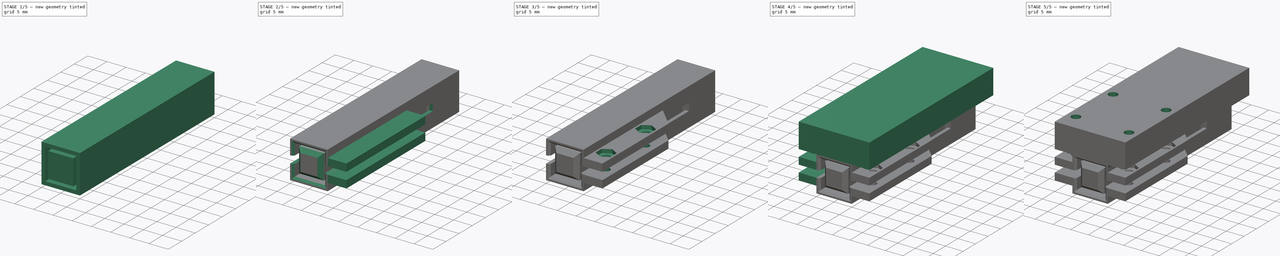
[diagram: build sequence overview — one tinted view per stage of 5, left to right]
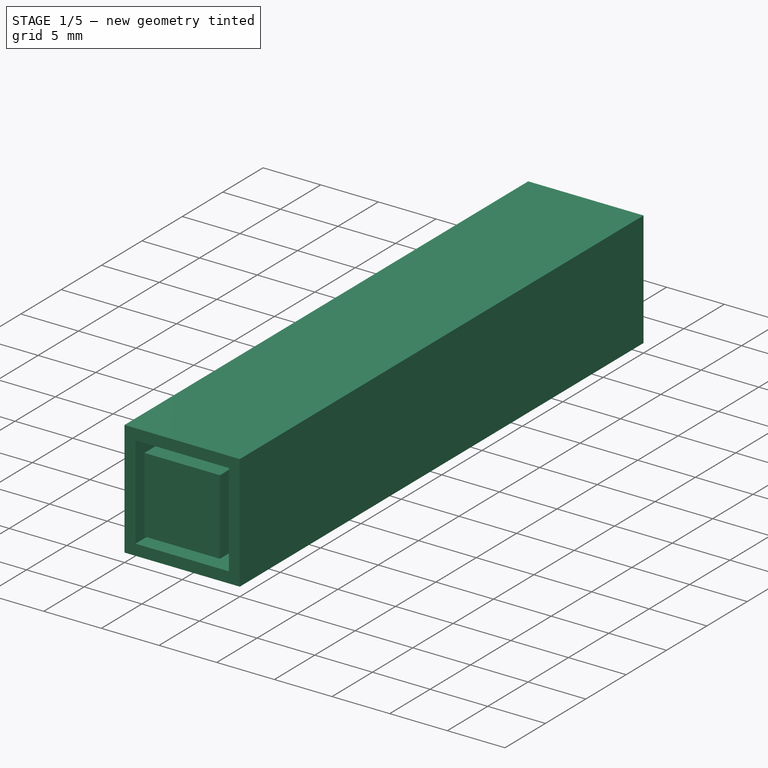
[diagram: stage 1 of 5 — iso view after this stage's code; geometry added in this stage tinted green]
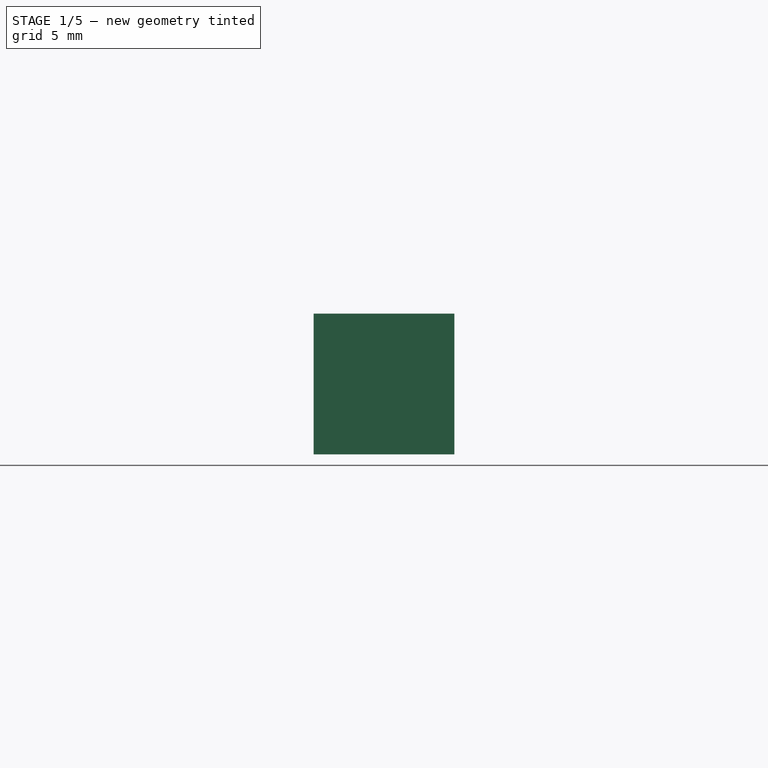
[diagram: stage 1 of 5 — front view after this stage's code; geometry added in this stage tinted green]
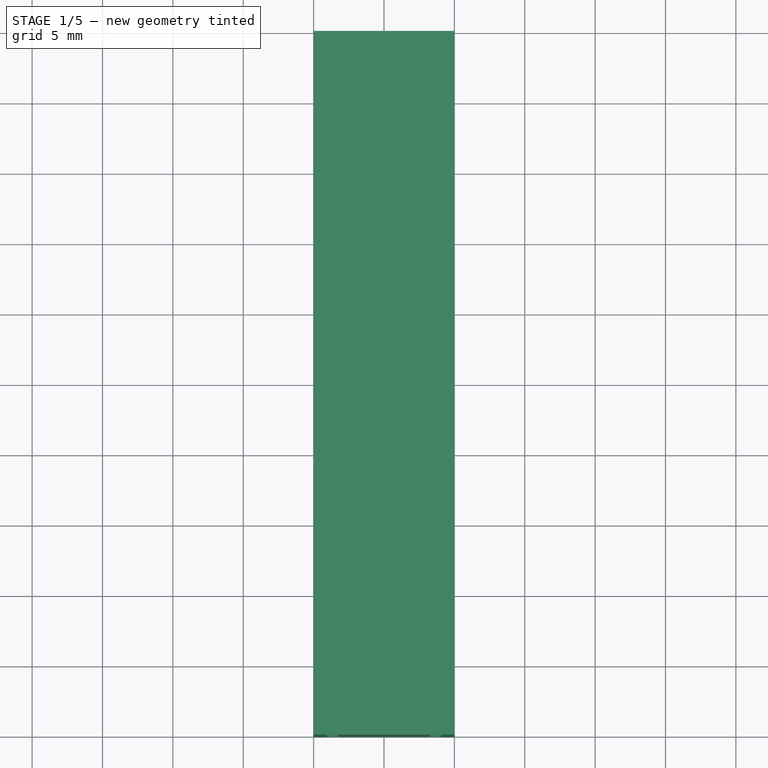
[diagram: stage 1 of 5 — top view after this stage's code; geometry added in this stage tinted green]
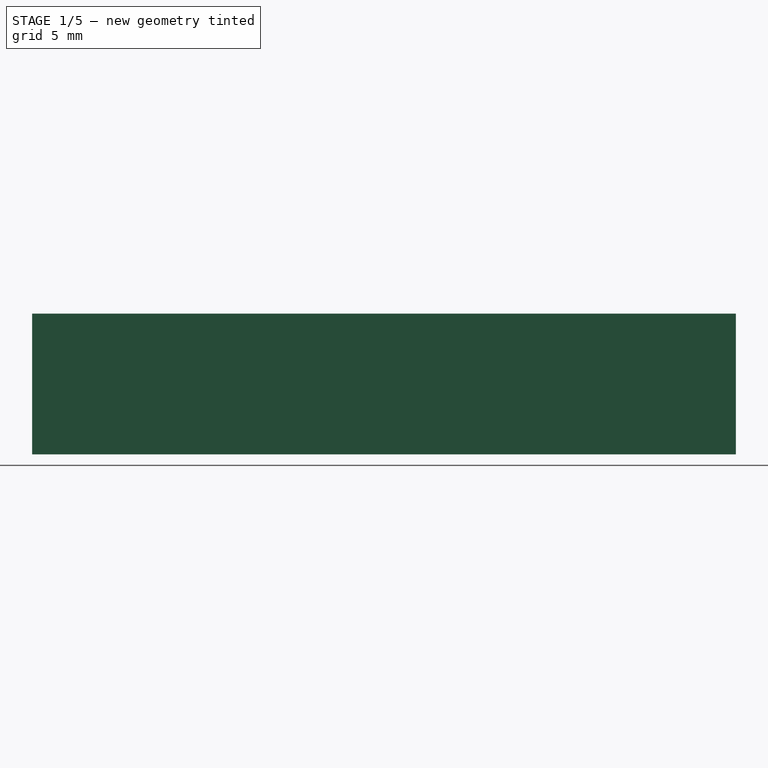
[diagram: stage 1 of 5 — right view after this stage's code; geometry added in this stage tinted green]
FCSTD DOCUMENT  (FreeCAD 0.21R33771 (Git))
Label: Stangenaufnahme
License: All rights reserved
LicenseURL: https://en.wikipedia.org/wiki/All_rights_reserved
objects: Sketcher::SketchObject×10, PartDesign::Pad×5, PartDesign::Chamfer×5, PartDesign::Pocket×4, PartDesign::Mirrored×2, PartDesign::Fillet×1, PartDesign::Body×1
note: 43 computed .brp shape members not serialized (recipe doc carries the construction recipe); baked Part::Feature solids carry a one-line shape summary decoded from their .brp

FEATURE [Sketcher::SketchObject] Sketch
  FullyConstrained = true
  MapMode = 5
  Placement = pos=(0,0,0) rot=(1,0,0;1.5708rad)
  Support = -> [XZ_Plane]
  sketch-geometry (4):
    g0: LineSegment StartX=-3.275 StartY=3.275 StartZ=0 EndX=3.275 EndY=3.275 EndZ=0
    g1: LineSegment StartX=3.275 StartY=3.275 StartZ=0 EndX=3.275 EndY=-3.275 EndZ=0
    g2: LineSegment StartX=3.275 StartY=-3.275 StartZ=0 EndX=-3.275 EndY=-3.275 EndZ=0
    g3: LineSegment StartX=-3.275 StartY=-3.275 StartZ=0 EndX=-3.275 EndY=3.275 EndZ=0
  constraints (10):
    c: Coincident(g0,g1)
    c: Coincident(g1,g2)
    c: Coincident(g2,g3)
    c: Coincident(g3,g0)
    c: Horizontal(g2)
    c: Vertical(g3)
    c: Symmetric(g0,g0,g-2)
    c: Symmetric(g1,g0,g-1)
    c: Distance(g0) = 6.55
    c: Distance(g1) = 6.55
FEATURE [PartDesign::Pad] Pad
  Direction = (0,-1,-2e-16)
  Length = 40
  Length2 = 10
  Placement = pos=(0,0,0) rot=(1,0,0;1.5708rad)
  Profile = -> Sketch
  ReferenceAxis = -> Sketch [N_Axis]
  Type = 0
FEATURE [Sketcher::SketchObject] Sketch001
  FullyConstrained = true
  MapMode = 5
  Placement = pos=(0,0,0) rot=(-1,0,0;1.5708rad)
  Support = -> [Pad]
  sketch-geometry (4):
    g0: LineSegment StartX=-5 StartY=5 StartZ=0 EndX=5 EndY=5 EndZ=0
    g1: LineSegment StartX=5 StartY=5 StartZ=0 EndX=5 EndY=-5 EndZ=0
    g2: LineSegment StartX=5 StartY=-5 StartZ=0 EndX=-5 EndY=-5 EndZ=0
    g3: LineSegment StartX=-5 StartY=-5 StartZ=0 EndX=-5 EndY=5 EndZ=0
  constraints (10):
    c: Coincident(g0,g1)
    c: Coincident(g1,g2)
    c: Coincident(g2,g3)
    c: Coincident(g3,g0)
    c: Horizontal(g2)
    c: Vertical(g3)
    c: Symmetric(g0,g0,g-2)
    c: Symmetric(g1,g0,g-1)
    c: Distance(g0) = 10
    c: Distance(g1) = 10
FEATURE [PartDesign::Pad] Pad001
  BaseFeature = -> Pad
  Direction = (0,1,2e-16)
  Length = 10
  Length2 = 10
  Placement = pos=(0,0,0) rot=(1,0,0;1.5708rad)
  Profile = -> Sketch001
  ReferenceAxis = -> Sketch001 [N_Axis]
  Type = 0
FEATURE [Sketcher::SketchObject] Sketch002
  FullyConstrained = true
  MapMode = 5
  Placement = pos=(0,0,0) rot=(1,0,0;1.5708rad)
  Support = -> [Pad001]
  sketch-geometry (8):
    g0: LineSegment StartX=-4.05 StartY=4.05 StartZ=0 EndX=4.05 EndY=4.05 EndZ=0
    g1: LineSegment StartX=4.05 StartY=4.05 StartZ=0 EndX=4.05 EndY=-4.05 EndZ=0
    g2: LineSegment StartX=4.05 StartY=-4.05 StartZ=0 EndX=-4.05 EndY=-4.05 EndZ=0
    g3: LineSegment StartX=-4.05 StartY=-4.05 StartZ=0 EndX=-4.05 EndY=4.05 EndZ=0
    g4: LineSegment StartX=-5 StartY=5 StartZ=0 EndX=5 EndY=5 EndZ=0
    g5: LineSegment StartX=5 StartY=5 StartZ=0 EndX=5 EndY=-5 EndZ=0
    g6: LineSegment StartX=5 StartY=-5 StartZ=0 EndX=-5 EndY=-5 EndZ=0
    g7: LineSegment StartX=-5 StartY=-5 StartZ=0 EndX=-5 EndY=5 EndZ=0
  constraints (20):
    c: Coincident(g0,g1)
    c: Coincident(g1,g2)
    c: Coincident(g2,g3)
    c: Coincident(g3,g0)
    c: Horizontal(g2)
    c: Vertical(g3)
    c: Coincident(g4,g5)
    c: Coincident(g5,g6)
    c: Coincident(g6,g7)
    c: Coincident(g7,g4)
    c: Horizontal(g6)
    c: Vertical(g7)
    c: Symmetric(g4,g4,g-2)
    c: Symmetric(g5,g4,g-1)
    c: Symmetric(g0,g1,g-1)
    c: Symmetric(g0,g0,g-2)
    c: Distance(g4) = 10
    c: Distance(g5) = 10
    c: Distance(g1) = 8.1
    c: Distance(g0) = 8.1
FEATURE [PartDesign::Pad] Pad002
  BaseFeature = -> Pad001
  Direction = (0,-1,-2e-16)
  Length = 40
  Length2 = 10
  Placement = pos=(0,0,0) rot=(1,0,0;1.5708rad)
  Profile = -> Sketch002
  ReferenceAxis = -> Sketch002 [N_Axis]
  Type = 0
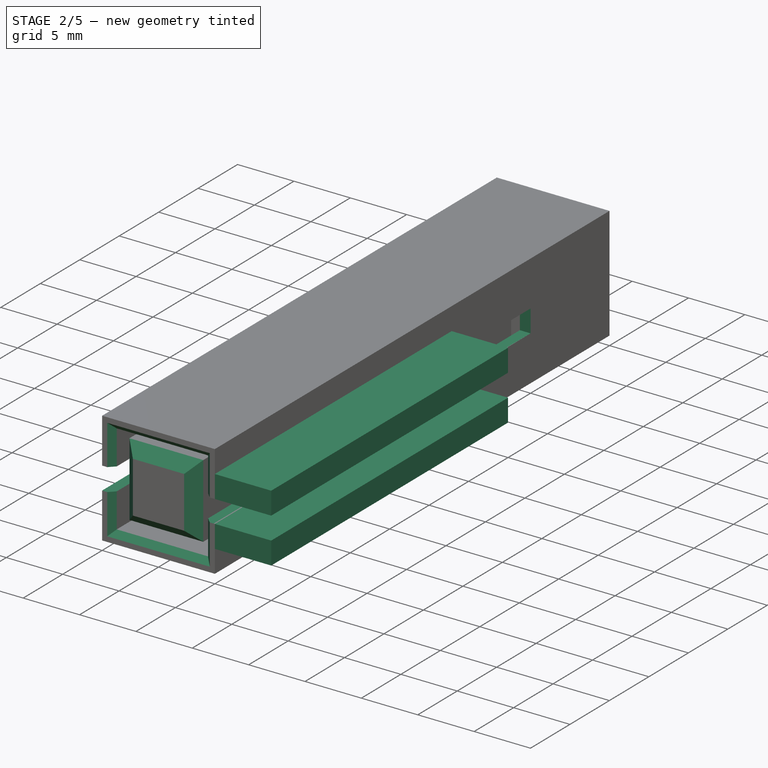
[diagram: stage 2 of 5 — iso view after this stage's code; geometry added in this stage tinted green]
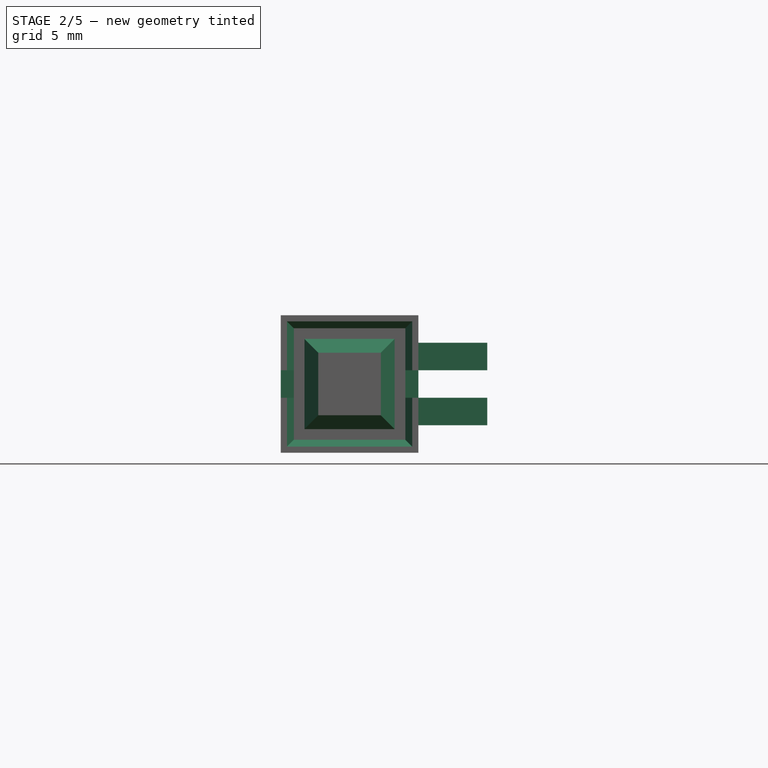
[diagram: stage 2 of 5 — front view after this stage's code; geometry added in this stage tinted green]
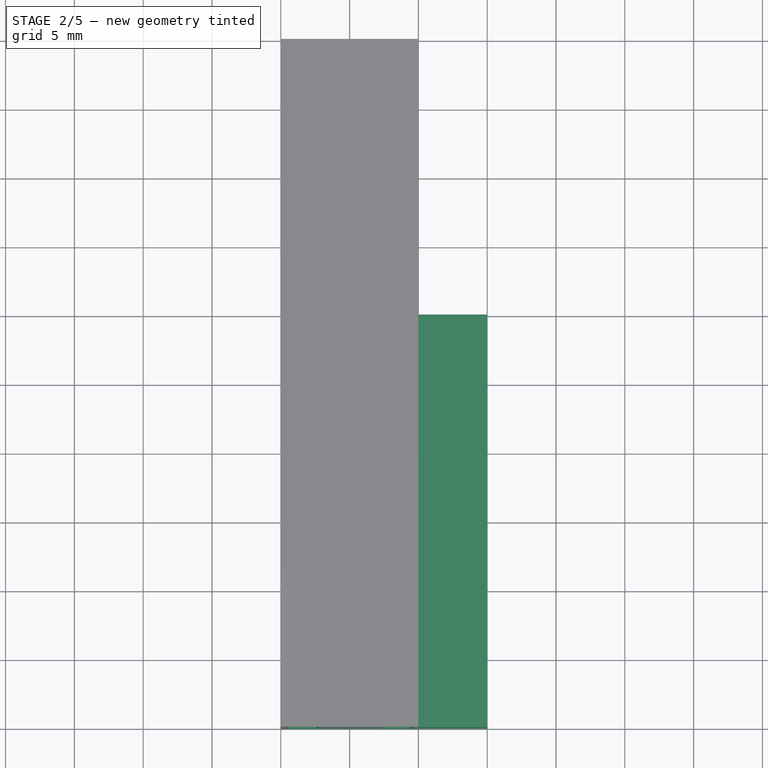
[diagram: stage 2 of 5 — top view after this stage's code; geometry added in this stage tinted green]
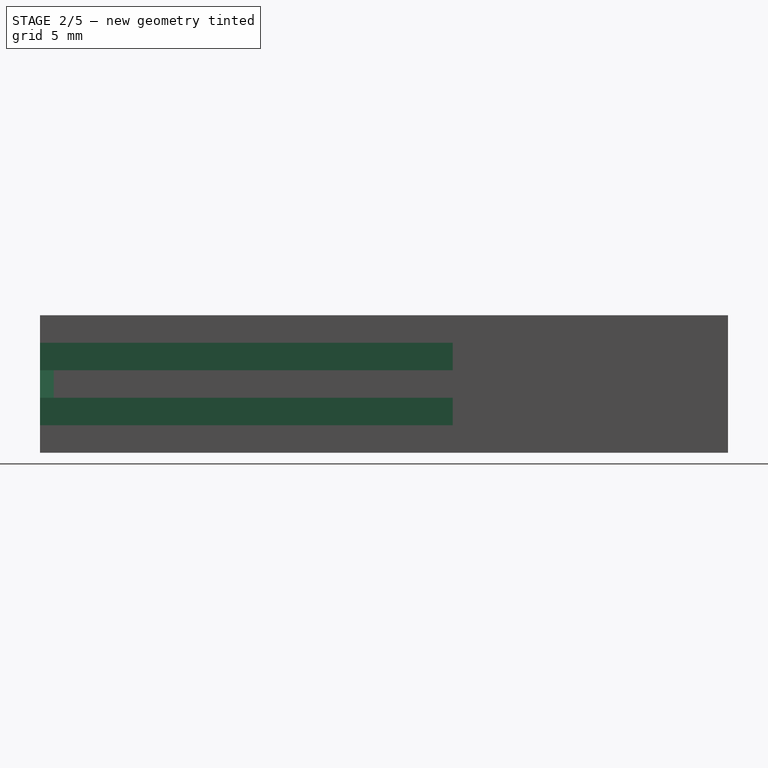
[diagram: stage 2 of 5 — right view after this stage's code; geometry added in this stage tinted green]
FEATURE [PartDesign::Chamfer] Chamfer
  Angle = 45
  Base = -> Pad002 [Edge41,Edge44,Edge43,Edge39]
  BaseFeature = -> Pad002
  ChamferType = 0
  FlipDirection = false
  Placement = pos=(0,0,0) rot=(1,0,0;1.5708rad)
  Size = 1
  Size2 = 1
  SupportTransform = false
  UseAllEdges = false
FEATURE [PartDesign::Chamfer] Chamfer001
  Angle = 45
  Base = -> Chamfer [Edge29,Edge31,Edge32,Edge27]
  BaseFeature = -> Chamfer
  ChamferType = 0
  FlipDirection = false
  Placement = pos=(0,0,0) rot=(1,0,0;1.5708rad)
  Size = 0.5
  Size2 = 1
  SupportTransform = false
  UseAllEdges = false
FEATURE [Sketcher::SketchObject] Sketch003
  FullyConstrained = true
  MapMode = 5
  Placement = pos=(0,-40,1e-16) rot=(1,0,0;1.5708rad)
  Support = -> [Chamfer001]
  sketch-geometry (8):
    g0: LineSegment StartX=-5.5 StartY=1 StartZ=0 EndX=-3.5 EndY=1 EndZ=0
    g1: LineSegment StartX=-3.5 StartY=1 StartZ=0 EndX=-3.5 EndY=-1 EndZ=0
    g2: LineSegment StartX=-3.5 StartY=-1 StartZ=0 EndX=-5.5 EndY=-1 EndZ=0
    g3: LineSegment StartX=-5.5 StartY=-1 StartZ=0 EndX=-5.5 EndY=1 EndZ=0
    g4: LineSegment StartX=3.5 StartY=1 StartZ=0 EndX=5.5 EndY=1 EndZ=0
    g5: LineSegment StartX=5.5 StartY=1 StartZ=0 EndX=5.5 EndY=-1 EndZ=0
    g6: LineSegment StartX=5.5 StartY=-1 StartZ=0 EndX=3.5 EndY=-1 EndZ=0
    g7: LineSegment StartX=3.5 StartY=-1 StartZ=0 EndX=3.5 EndY=1 EndZ=0
  constraints (22):
    c: Coincident(g0,g1)
    c: Coincident(g1,g2)
    c: Coincident(g2,g3)
    c: Coincident(g3,g0)
    c: Horizontal(g0)
    c: Horizontal(g2)
    c: Vertical(g3)
    c: Coincident(g4,g5)
    c: Coincident(g5,g6)
    c: Coincident(g6,g7)
    c: Coincident(g7,g4)
    c: Horizontal(g4)
    c: Horizontal(g6)
    c: Symmetric(g4,g5,g-1)
    c: Vertical(g7)
    c: Symmetric(g0,g1,g-1)
    c: Distance(g5) = 2
    c: Distance(g3) = 2
    c: DistanceX(g0,g-1) = 3.5
    c: DistanceX(g0,g0) = 2
    c: DistanceX(g-1,g4) = 3.5
    c: DistanceX(g4,g4) = 2
FEATURE [PartDesign::Pocket] Pocket
  BaseFeature = -> Chamfer001
  Direction = (0,1,-2e-16)
  Length = 40
  Length2 = 5
  Placement = pos=(0,0,0) rot=(1,0,0;1.5708rad)
  Profile = -> Sketch003
  ReferenceAxis = -> Sketch003 [N_Axis]
  Type = 0
FEATURE [Sketcher::SketchObject] Sketch004
  FullyConstrained = true
  MapMode = 5
  Placement = pos=(0,-40,4.5e-15) rot=(1,0,0;1.5708rad)
  Support = -> [Pocket]
  sketch-geometry (8):
    g0: LineSegment StartX=4.9 StartY=1 StartZ=0 EndX=10 EndY=1 EndZ=0
    g1: LineSegment StartX=10 StartY=1 StartZ=0 EndX=10 EndY=3 EndZ=0
    g2: LineSegment StartX=10 StartY=3 StartZ=0 EndX=4.9 EndY=3 EndZ=0
    g3: LineSegment StartX=4.9 StartY=3 StartZ=0 EndX=4.9 EndY=1 EndZ=0
    g4: LineSegment StartX=4.9 StartY=-1 StartZ=0 EndX=10 EndY=-1 EndZ=0
    g5: LineSegment StartX=10 StartY=-1 StartZ=0 EndX=10 EndY=-3 EndZ=0
    g6: LineSegment StartX=10 StartY=-3 StartZ=0 EndX=4.9 EndY=-3 EndZ=0
    g7: LineSegment StartX=4.9 StartY=-3 StartZ=0 EndX=4.9 EndY=-1 EndZ=0
  constraints (24):
    c: Coincident(g0,g1)
    c: Coincident(g1,g2)
    c: Coincident(g2,g3)
    c: Coincident(g3,g0)
    c: Horizontal(g0)
    c: Horizontal(g2)
    c: Vertical(g1)
    c: Vertical(g3)
    c: Coincident(g4,g5)
    c: Coincident(g5,g6)
    c: Coincident(g6,g7)
    c: Coincident(g7,g4)
    c: Horizontal(g4)
    c: Horizontal(g6)
    c: Vertical(g5)
    c: Vertical(g7)
    c: Distance(g2) = 5.1
    c: Distance(g4) = 5.1
    c: Distance(g4,g-2) = 4.9
    c: Distance(g0,g-2) = 4.9
    c: Distance(g0,g-1) = 1
    c: Distance(g4,g-1) = 1
    c: Distance(g1) = 2
    c: Distance(g5) = 2
FEATURE [PartDesign::Pad] Pad003
  BaseFeature = -> Pocket
  Direction = (0,-1,2e-16)
  Length = 30
  Length2 = 10
  Placement = pos=(0,0,0) rot=(1,0,0;1.5708rad)
  Profile = -> Sketch004
  ReferenceAxis = -> Sketch004 [N_Axis]
  Reversed = true
  Type = 0
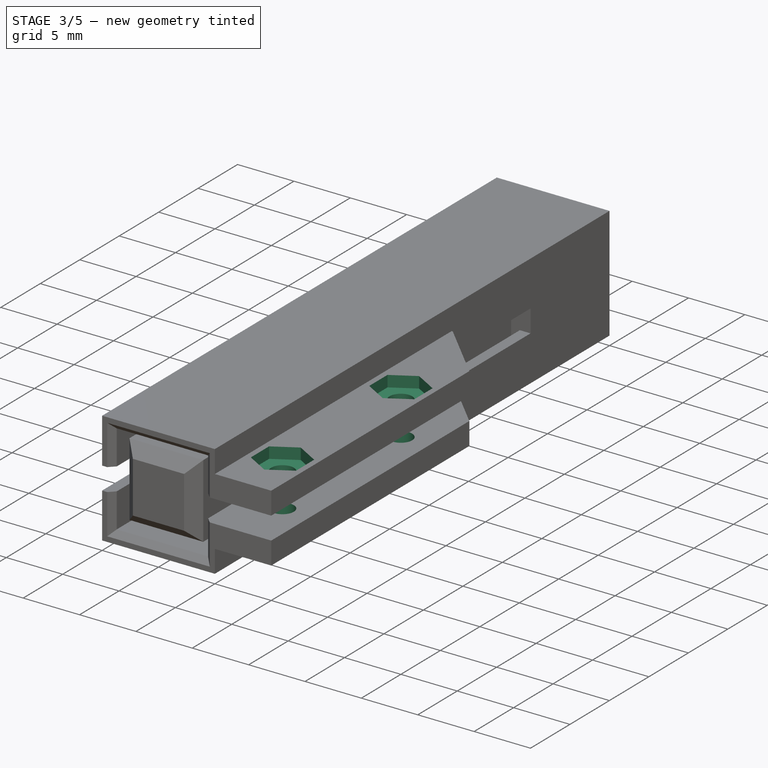
[diagram: stage 3 of 5 — iso view after this stage's code; geometry added in this stage tinted green]
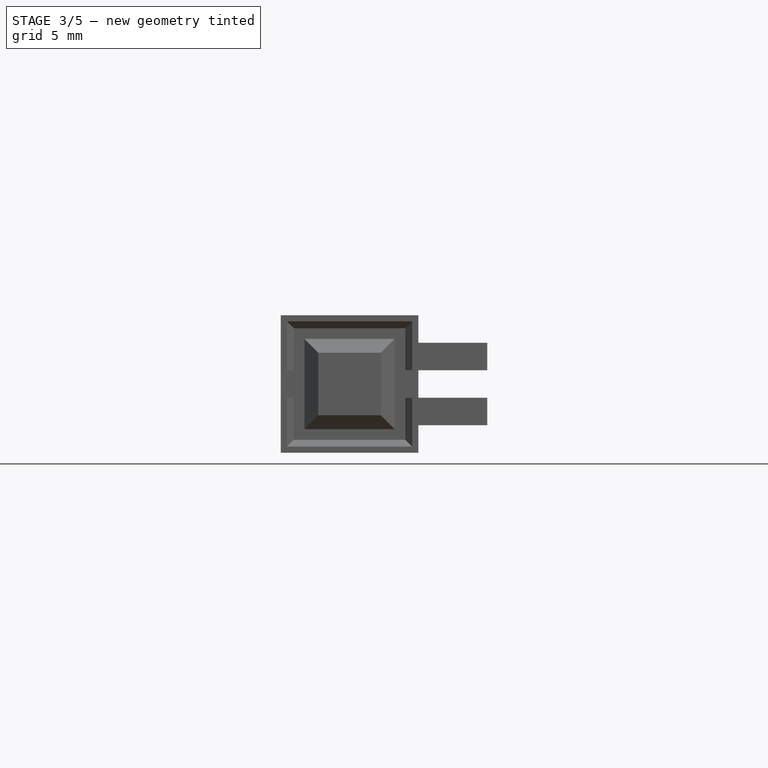
[diagram: stage 3 of 5 — front view after this stage's code; geometry added in this stage tinted green]
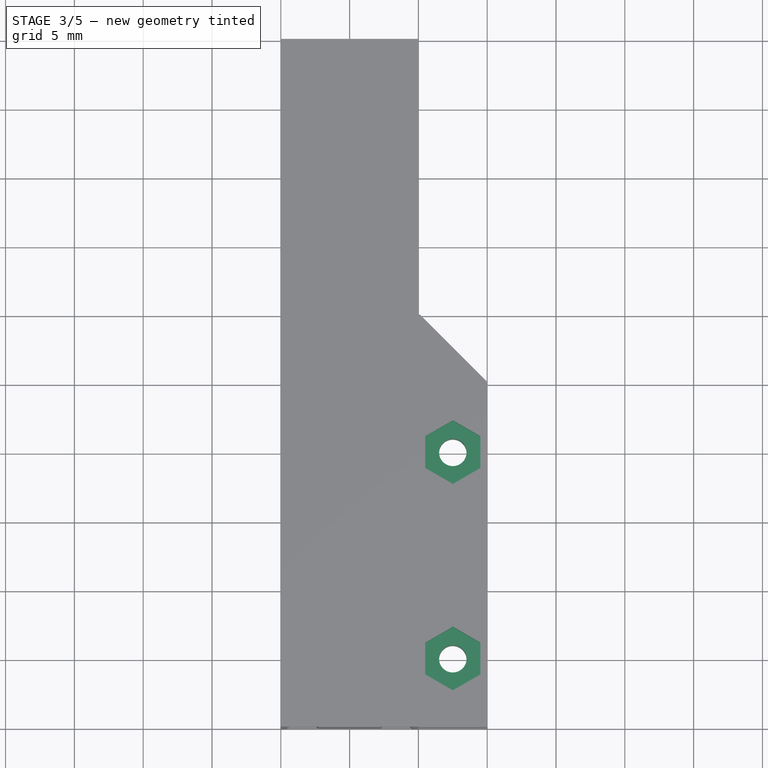
[diagram: stage 3 of 5 — top view after this stage's code; geometry added in this stage tinted green]
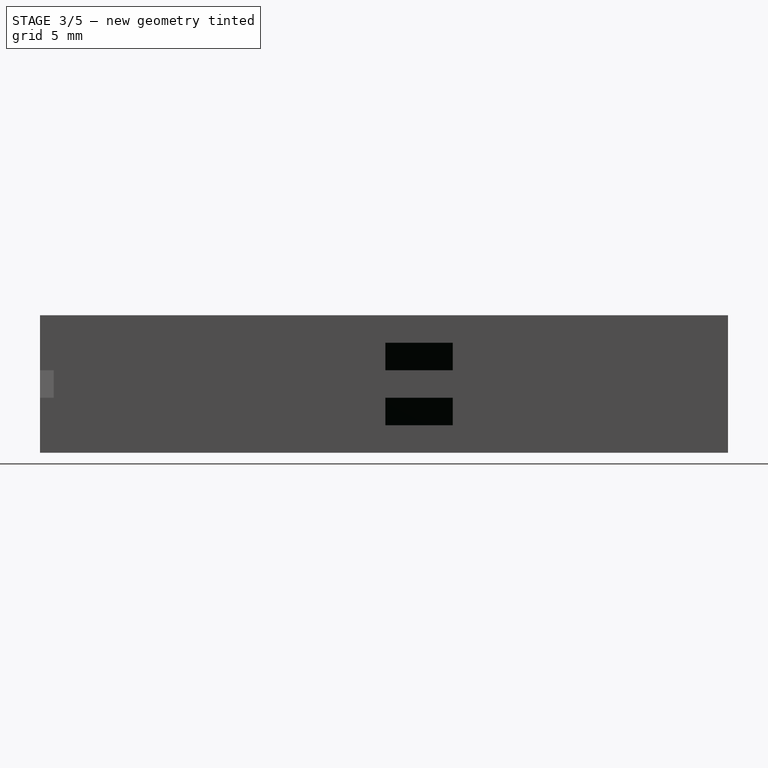
[diagram: stage 3 of 5 — right view after this stage's code; geometry added in this stage tinted green]
FEATURE [Sketcher::SketchObject] Sketch005
  FullyConstrained = true
  MapMode = 5
  Placement = pos=(0,-1e-15,-3) rot=(1,0,0;3.14159rad)
  Support = -> [Pad003]
FEATURE [PartDesign::Chamfer] Chamfer002
  Angle = 45
  Base = -> Pad003 [Edge119,Edge130]
  BaseFeature = -> Pad003
  ChamferType = 0
  FlipDirection = false
  Placement = pos=(0,0,0) rot=(1,0,0;1.5708rad)
  Size = 4.9
  Size2 = 1
  SupportTransform = false
  UseAllEdges = false
FEATURE [Sketcher::SketchObject] Sketch006
  FullyConstrained = true
  MapMode = 5
  Placement = pos=(0,-1e-15,-3) rot=(1,0,0;3.14159rad)
  Support = -> [Chamfer002]
  sketch-geometry (2):
    g0: Circle CenterX=7.5 CenterY=35 CenterZ=0 NormalX=0 NormalY=0 NormalZ=1 AngleXU=0 Radius=1
    g1: Circle CenterX=7.5 CenterY=20 CenterZ=0 NormalX=0 NormalY=0 NormalZ=1 AngleXU=0 Radius=1
  constraints (6):
    c: Diameter(g0) = 2
    c: Diameter(g1) = 2
    c: Distance(g0,g-2) = 7.5
    c: Distance(g1,g-2) = 7.5
    c: Distance(g1,g-1) = 20
    c: Distance(g0,g1) = 15
FEATURE [PartDesign::Pocket] Pocket001
  BaseFeature = -> Chamfer002
  Direction = (0,3e-16,1)
  Length = 100
  Length2 = 5
  Placement = pos=(0,0,0) rot=(1,0,0;1.5708rad)
  Profile = -> Sketch006
  ReferenceAxis = -> Sketch006 [N_Axis]
  Type = 0
FEATURE [Sketcher::SketchObject] Sketch007
  FullyConstrained = true
  MapMode = 5
  Placement = pos=(0,1.3e-15,3) rot=(0,0,1;3.14159rad)
  Support = -> [Pocket001]
  sketch-geometry (14):
    g0: LineSegment StartX=-5.5 StartY=36.1547 StartZ=0 EndX=-7.5 EndY=37.3094 EndZ=0
    g1: LineSegment StartX=-7.5 StartY=37.3094 StartZ=0 EndX=-9.5 EndY=36.1547 EndZ=0
    g2: LineSegment StartX=-9.5 StartY=36.1547 StartZ=0 EndX=-9.5 EndY=33.8453 EndZ=0
    g3: LineSegment StartX=-9.5 StartY=33.8453 StartZ=0 EndX=-7.5 EndY=32.6906 EndZ=0
    g4: LineSegment StartX=-7.5 StartY=32.6906 StartZ=0 EndX=-5.5 EndY=33.8453 EndZ=0
    g5: LineSegment StartX=-5.5 StartY=33.8453 StartZ=0 EndX=-5.5 EndY=36.1547 EndZ=0
    g6: Circle CenterX=-7.5 CenterY=35 CenterZ=0 NormalX=0 NormalY=0 NormalZ=1 AngleXU=0 Radius=2.3094
    g7: LineSegment StartX=-5.5 StartY=21.1547 StartZ=0 EndX=-7.5 EndY=22.3094 EndZ=0
    g8: LineSegment StartX=-7.5 StartY=22.3094 StartZ=0 EndX=-9.5 EndY=21.1547 EndZ=0
    g9: LineSegment StartX=-9.5 StartY=21.1547 StartZ=0 EndX=-9.5 EndY=18.8453 EndZ=0
    g10: LineSegment StartX=-9.5 StartY=18.8453 StartZ=0 EndX=-7.5 EndY=17.6906 EndZ=0
    g11: LineSegment StartX=-7.5 StartY=17.6906 StartZ=0 EndX=-5.5 EndY=18.8453 EndZ=0
    g12: LineSegment StartX=-5.5 StartY=18.8453 StartZ=0 EndX=-5.5 EndY=21.1547 EndZ=0
    g13: Circle CenterX=-7.5 CenterY=20 CenterZ=0 NormalX=0 NormalY=0 NormalZ=1 AngleXU=0 Radius=2.3094
  constraints (34):
    c: Coincident(g0,g1)
    c: Coincident(g1,g2)
    c: Coincident(g2,g3)
    c: Coincident(g3,g4)
    c: Coincident(g4,g5)
    c: Coincident(g5,g0)
    c: Equal(g0, g1-g5) x5
    c: PointOnObject(g0,g6)
    c: PointOnObject(g1,g6)
    c: PointOnObject(g2,g6)
    c: PointOnObject(g3,g6)
    c: PointOnObject(g4,g6)
    c: PointOnObject(g5,g6)
    c: Vertical(g5)
    c: DistanceX(g2,g4) = 4
    c: Coincident(g7,g8)
    c: Coincident(g8,g9)
    c: Coincident(g9,g10)
    c: Coincident(g10,g11)
    c: Coincident(g11,g12)
    c: Coincident(g12,g7)
    c: Equal(g7, g8-g12) x5
    c: PointOnObject(g7,g13)
    c: PointOnObject(g8,g13)
    c: PointOnObject(g9,g13)
    c: PointOnObject(g10,g13)
    c: PointOnObject(g11,g13)
    c: PointOnObject(g12,g13)
    c: Vertical(g12)
    c: DistanceX(g9,g11) = 4
    c: Distance(g13,g-2) = 7.5
    c: Distance(g6,g-2) = 7.5
    c: Distance(g13,g-1) = 20
    c: Distance(g13,g6) = 15
FEATURE [PartDesign::Pocket] Pocket002
  BaseFeature = -> Pocket001
  Direction = (0,-4e-16,-1)
  Length = 1
  Length2 = 5
  Placement = pos=(0,0,0) rot=(1,0,0;1.5708rad)
  Profile = -> Sketch007
  ReferenceAxis = -> Sketch007 [N_Axis]
  Type = 0
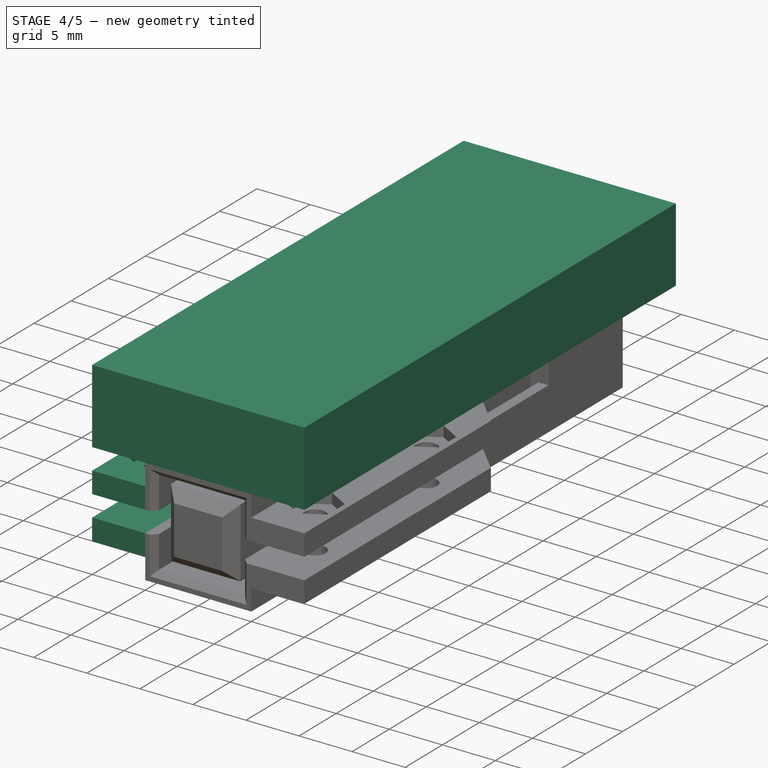
[diagram: stage 4 of 5 — iso view after this stage's code; geometry added in this stage tinted green]
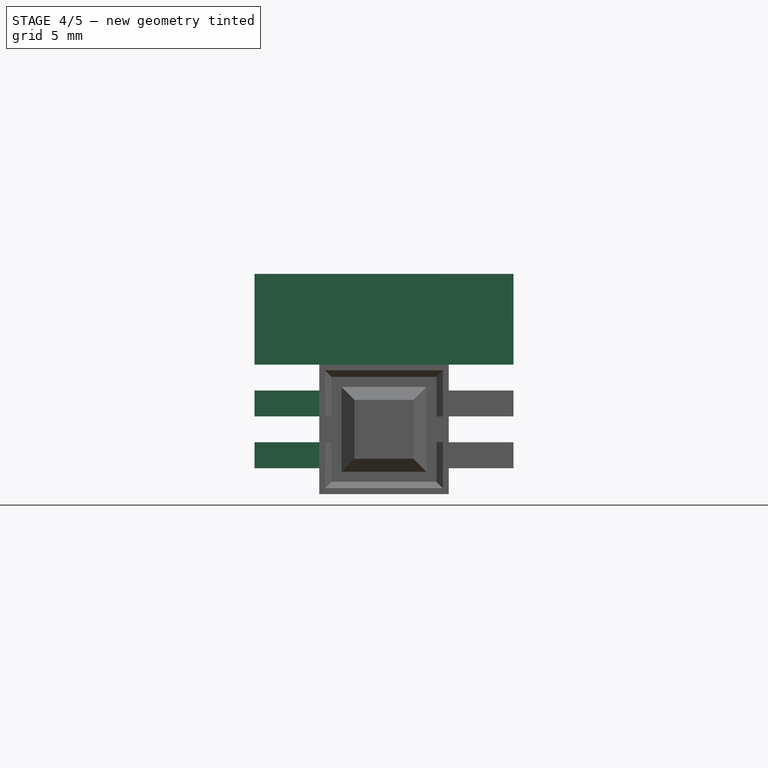
[diagram: stage 4 of 5 — front view after this stage's code; geometry added in this stage tinted green]
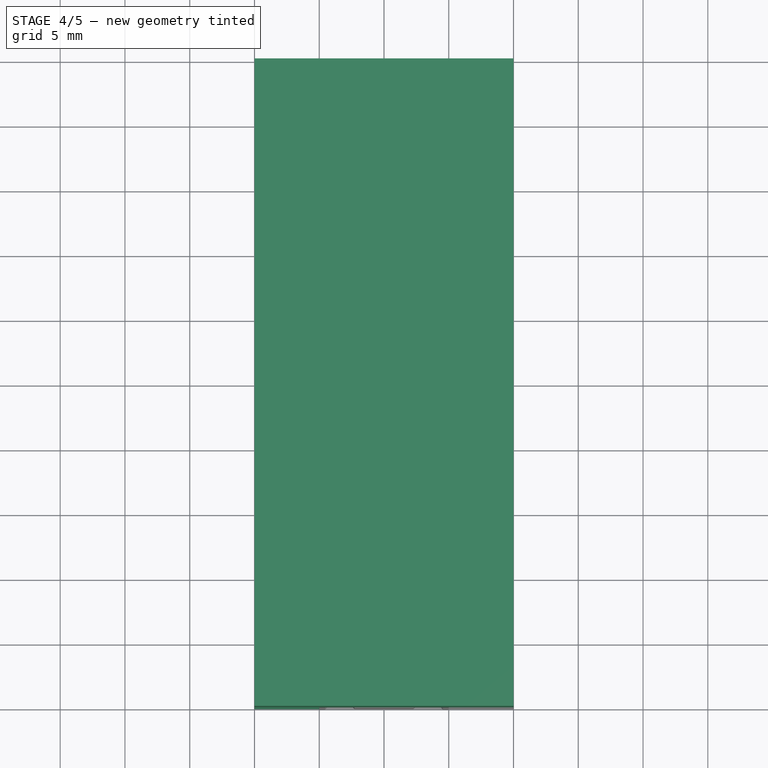
[diagram: stage 4 of 5 — top view after this stage's code; geometry added in this stage tinted green]
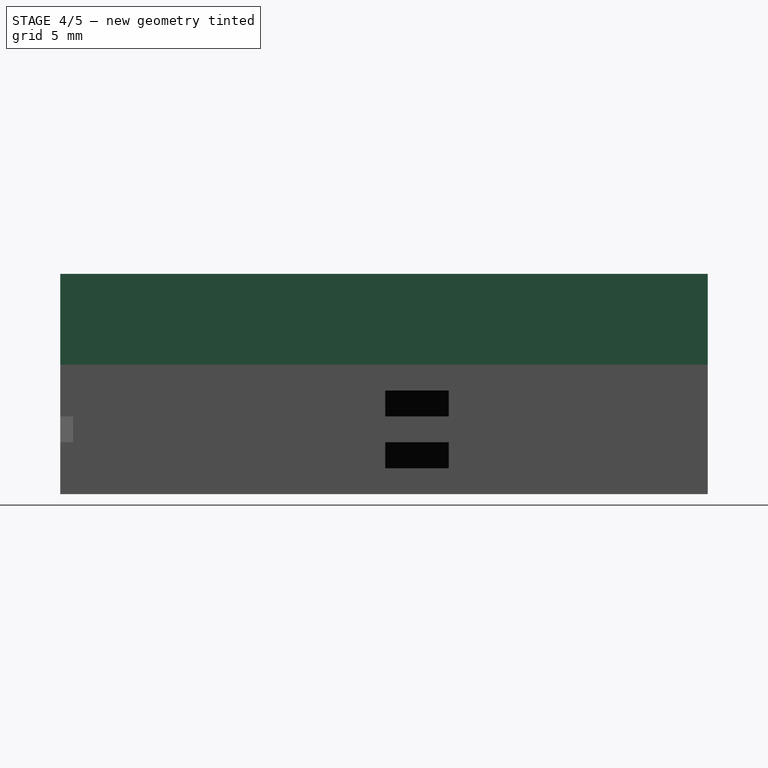
[diagram: stage 4 of 5 — right view after this stage's code; geometry added in this stage tinted green]
FEATURE [PartDesign::Chamfer] Chamfer003
  Angle = 45
  Base = -> Pocket002 [Edge7,Edge6]
  BaseFeature = -> Pocket002
  ChamferType = 0
  FlipDirection = false
  Placement = pos=(0,0,0) rot=(1,0,0;1.5708rad)
  Size = 0.3
  Size2 = 1
  SupportTransform = false
  UseAllEdges = false
FEATURE [PartDesign::Chamfer] Chamfer004
  Angle = 45
  Base = -> Chamfer003 [Edge151,Edge152]
  BaseFeature = -> Chamfer003
  ChamferType = 0
  FlipDirection = false
  Placement = pos=(0,0,0) rot=(1,0,0;1.5708rad)
  Size = 0.3
  Size2 = 1
  SupportTransform = false
  UseAllEdges = false
FEATURE [PartDesign::Mirrored] Mirrored
  BaseFeature = -> Chamfer004
  MirrorPlane = -> Sketch004 [V_Axis]
  Originals = -> [Pad003,Chamfer002,Pocket001,Pocket002,Chamfer003,Chamfer004]
  Placement = pos=(0,0,0) rot=(1,0,0;1.5708rad)
FEATURE [Sketcher::SketchObject] Sketch008
  FullyConstrained = true
  MapMode = 5
  Placement = pos=(0,3.3e-15,5) rot=(0,0,1;3.14159rad)
  Support = -> [Mirrored]
  sketch-geometry (4):
    g0: LineSegment StartX=-10 StartY=-10 StartZ=0 EndX=10 EndY=-10 EndZ=0
    g1: LineSegment StartX=10 StartY=-10 StartZ=0 EndX=10 EndY=40 EndZ=0
    g2: LineSegment StartX=10 StartY=40 StartZ=0 EndX=-10 EndY=40 EndZ=0
    g3: LineSegment StartX=-10 StartY=40 StartZ=0 EndX=-10 EndY=-10 EndZ=0
  constraints (12):
    c: Coincident(g0,g1)
    c: Coincident(g1,g2)
    c: Coincident(g2,g3)
    c: Coincident(g3,g0)
    c: Horizontal(g0)
    c: Horizontal(g2)
    c: Vertical(g1)
    c: Vertical(g3)
    c: Distance(g1) = 50
    c: Distance(g2) = 20
    c: Distance(g0,g-1) = 10
    c: Distance(g2,g-2) = 10
FEATURE [PartDesign::Pad] Pad004
  BaseFeature = -> Mirrored
  Direction = (0,7e-16,1)
  Length = 7
  Length2 = 10
  Placement = pos=(0,0,0) rot=(1,0,0;1.5708rad)
  Profile = -> Sketch008
  ReferenceAxis = -> Sketch008 [N_Axis]
  Type = 0
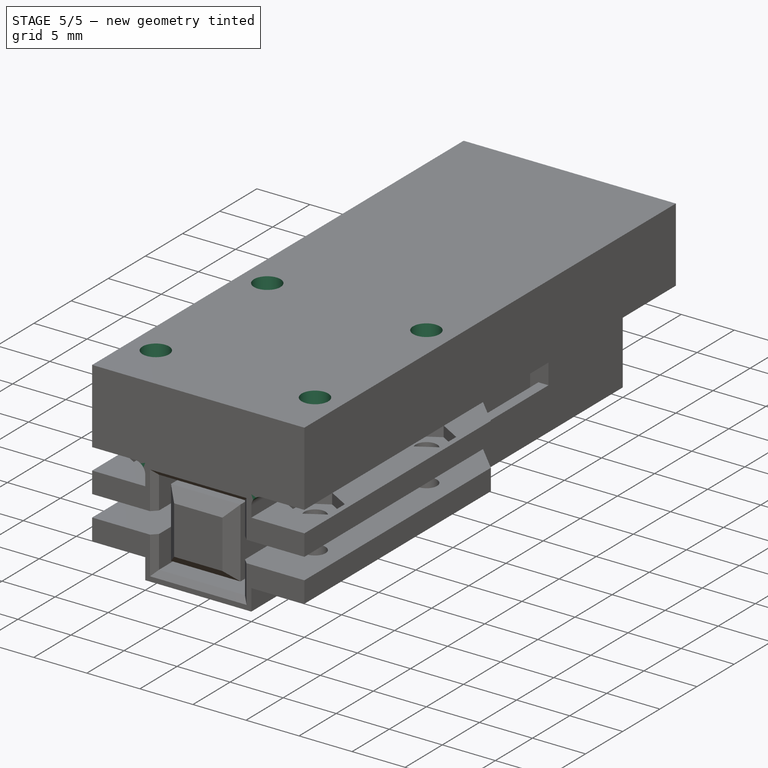
[diagram: stage 5 of 5 — iso view after this stage's code; geometry added in this stage tinted green]
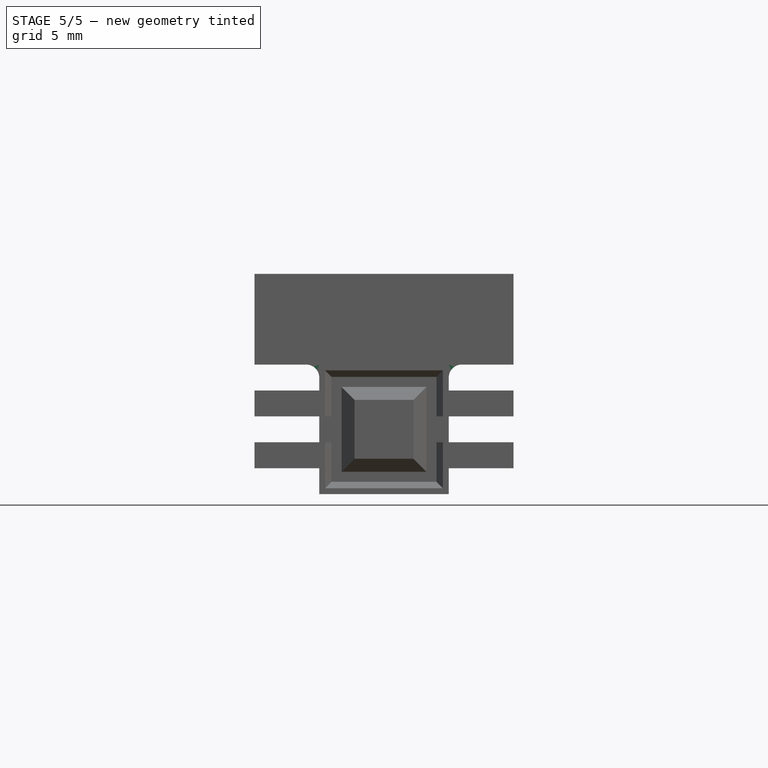
[diagram: stage 5 of 5 — front view after this stage's code; geometry added in this stage tinted green]
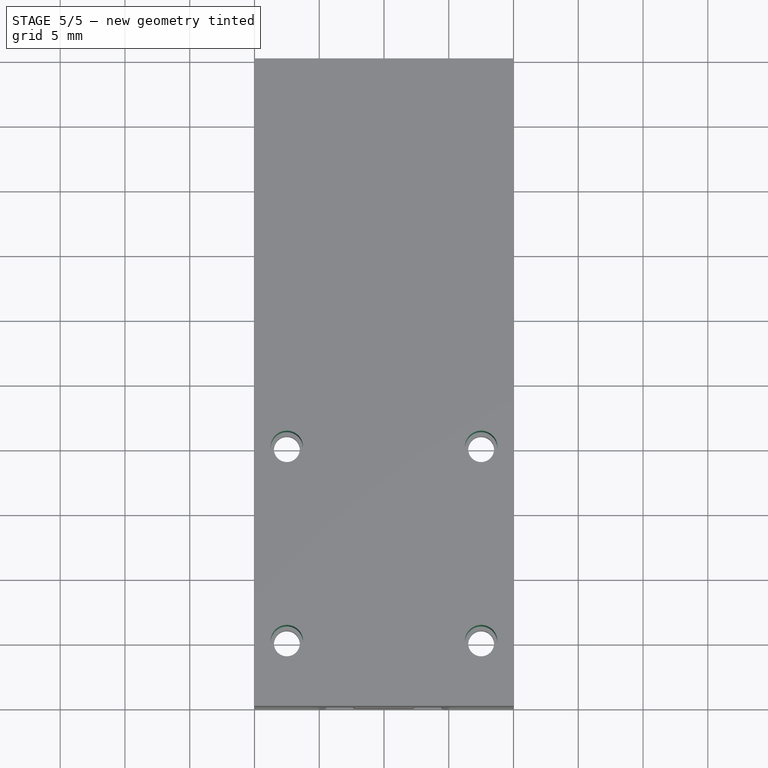
[diagram: stage 5 of 5 — top view after this stage's code; geometry added in this stage tinted green]
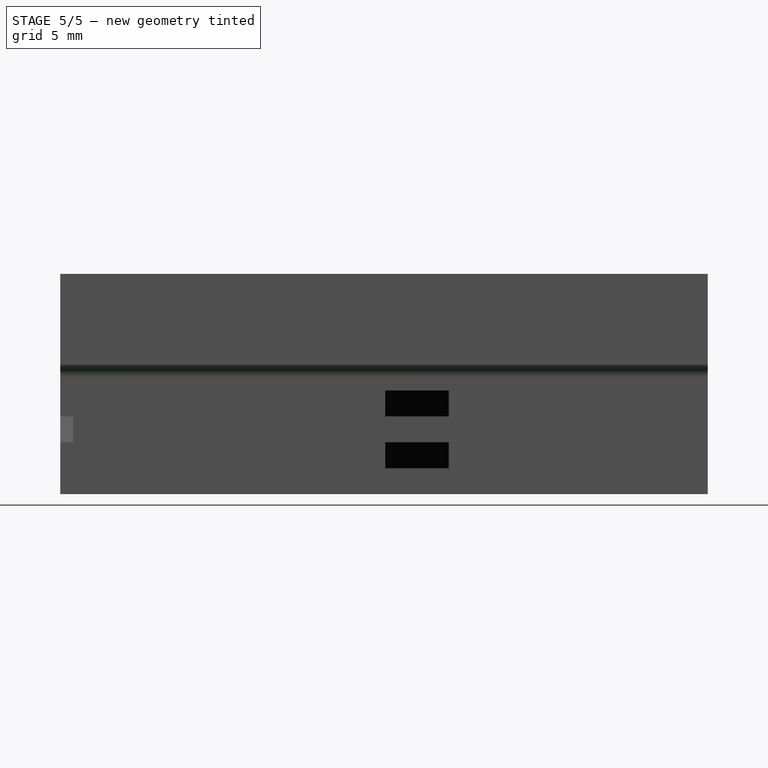
[diagram: stage 5 of 5 — right view after this stage's code; geometry added in this stage tinted green]
FEATURE [PartDesign::Fillet] Fillet
  Base = -> Pad004 [Edge14,Edge15,Edge20,Edge19]
  BaseFeature = -> Pad004
  Placement = pos=(0,0,0) rot=(1,0,0;1.5708rad)
  Radius = 1
  SupportTransform = false
  UseAllEdges = false
FEATURE [Sketcher::SketchObject] Sketch009
  FullyConstrained = true
  MapMode = 5
  Placement = pos=(0,3.9e-15,5) rot=(1,0,0;3.14159rad)
  Support = -> [Fillet]
  sketch-geometry (2):
    g0: Circle CenterX=-7.5 CenterY=35 CenterZ=0 NormalX=0 NormalY=0 NormalZ=1 AngleXU=0 Radius=1.25
    g1: Circle CenterX=-7.5 CenterY=20 CenterZ=0 NormalX=0 NormalY=0 NormalZ=1 AngleXU=0 Radius=1.25
  constraints (6):
    c: Distance(g1,g-1) = 20
    c: Distance(g1,g-2) = 7.5
    c: Distance(g0,g-2) = 7.5
    c: Distance(g0,g-1) = 35
    c: Diameter(g0) = 2.5
    c: Diameter(g1) = 2.5
FEATURE [PartDesign::Pocket] Pocket003
  BaseFeature = -> Fillet
  Direction = (0,8e-16,1)
  Length = 10
  Length2 = 5
  Placement = pos=(0,0,0) rot=(1,0,0;1.5708rad)
  Profile = -> Sketch009
  ReferenceAxis = -> Sketch009 [N_Axis]
  Type = 0
FEATURE [PartDesign::Mirrored] Mirrored001
  BaseFeature = -> Pocket003
  MirrorPlane = -> Sketch009 [V_Axis]
  Originals = -> [Pocket003]
  Placement = pos=(0,0,0) rot=(1,0,0;1.5708rad)
FEATURE [PartDesign::Body] Body
  Group = -> [Sketch,Pad,Sketch001,Pad001,Sketch002,Pad002,Chamfer,Chamfer001,Sketch003,Pocket,Sketch004,Pad003,Sketch005,Chamfer002,Sketch006,Pocket001,Sketch007,Pocket002,Chamfer003,Chamfer004,Mirrored,Sketch008,Pad004,Fillet,Sketch009,Pocket003,Mirrored001]
  Origin = -> Origin
  Tip = -> Mirrored001
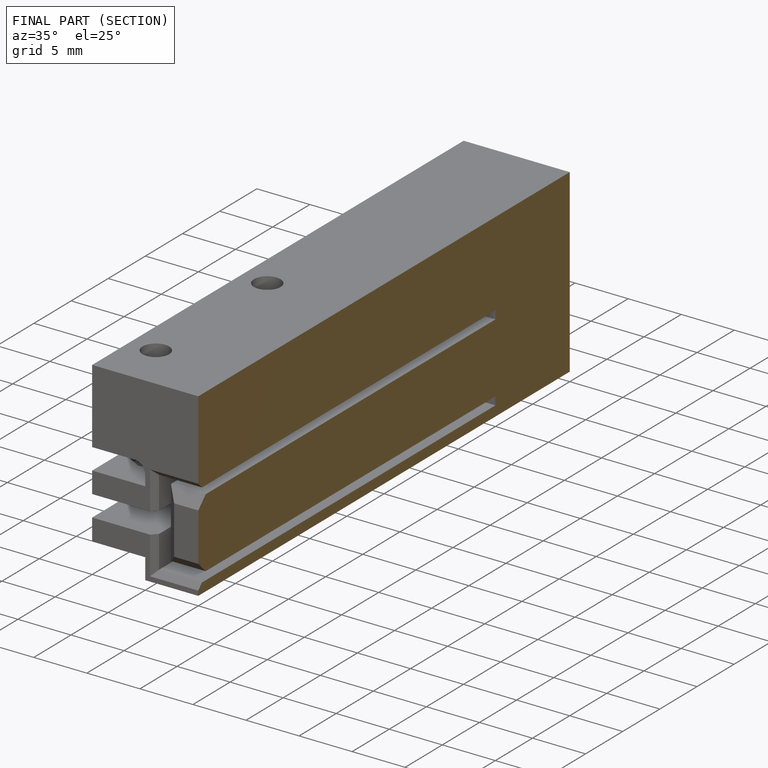
[diagram: finished part — half-section view (interior)]
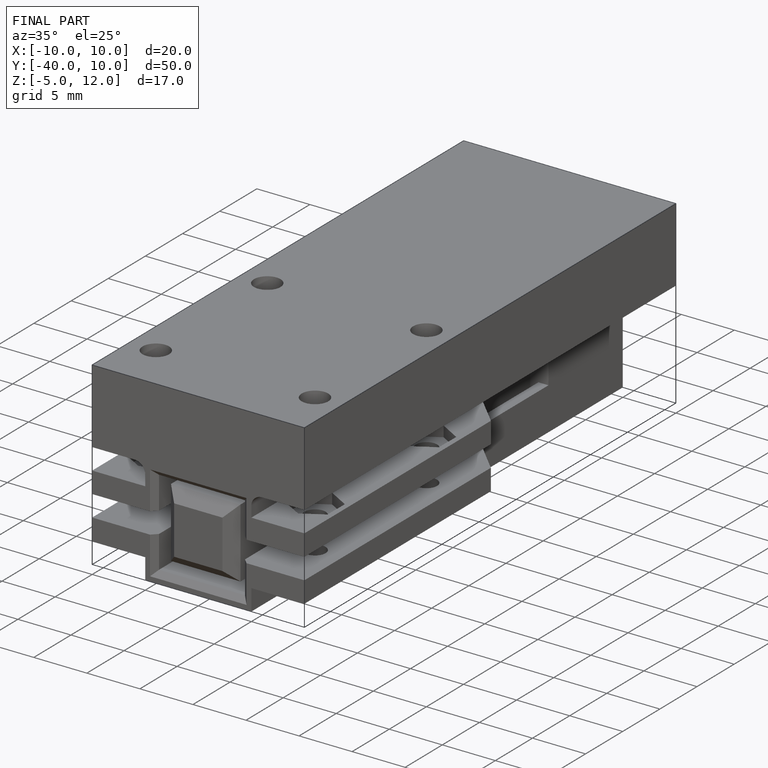
[diagram: finished part — iso view with bounding-box wireframe]
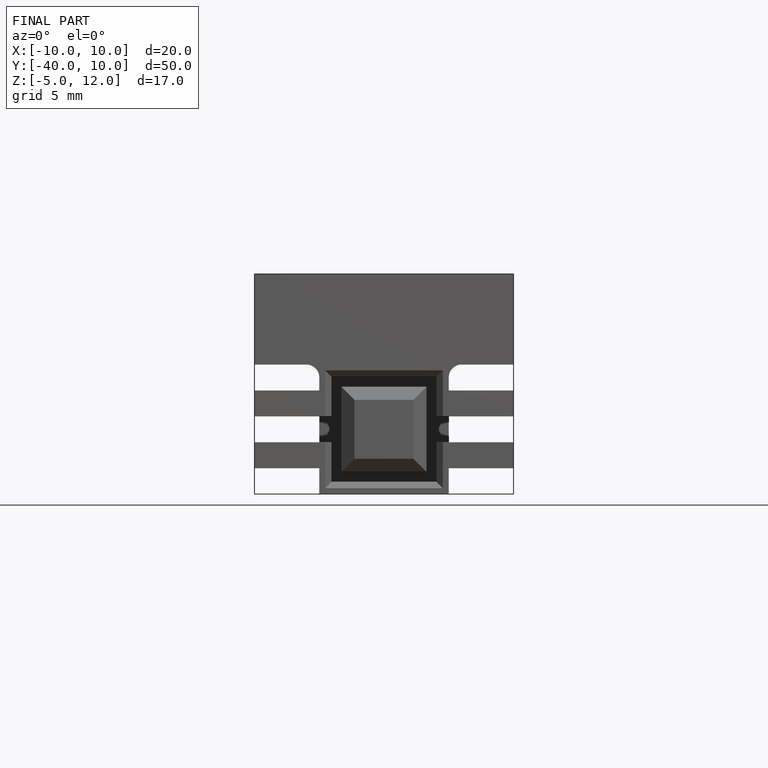
[diagram: finished part — front view with bounding-box wireframe]
